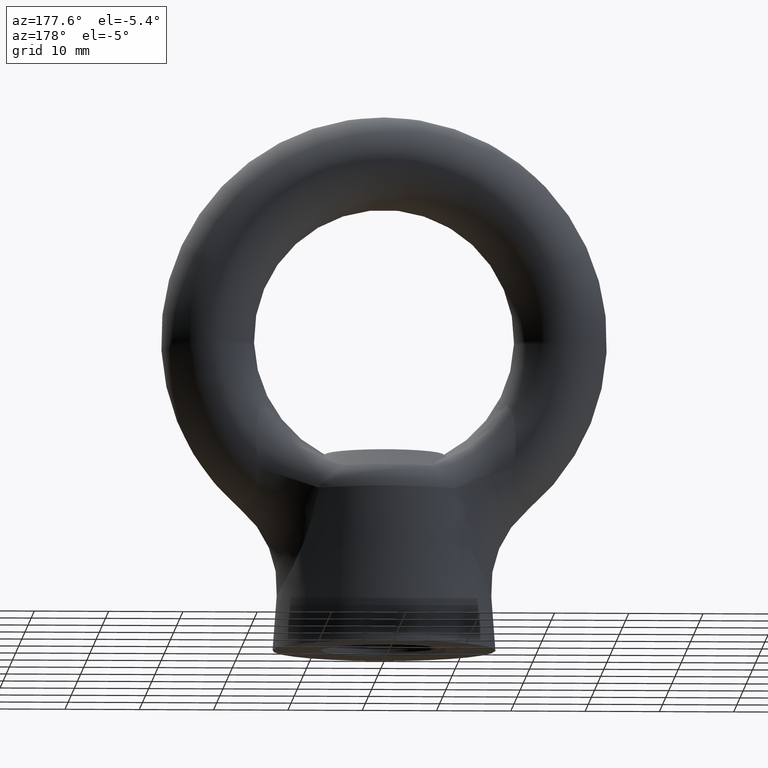
[diagram: clean part render]
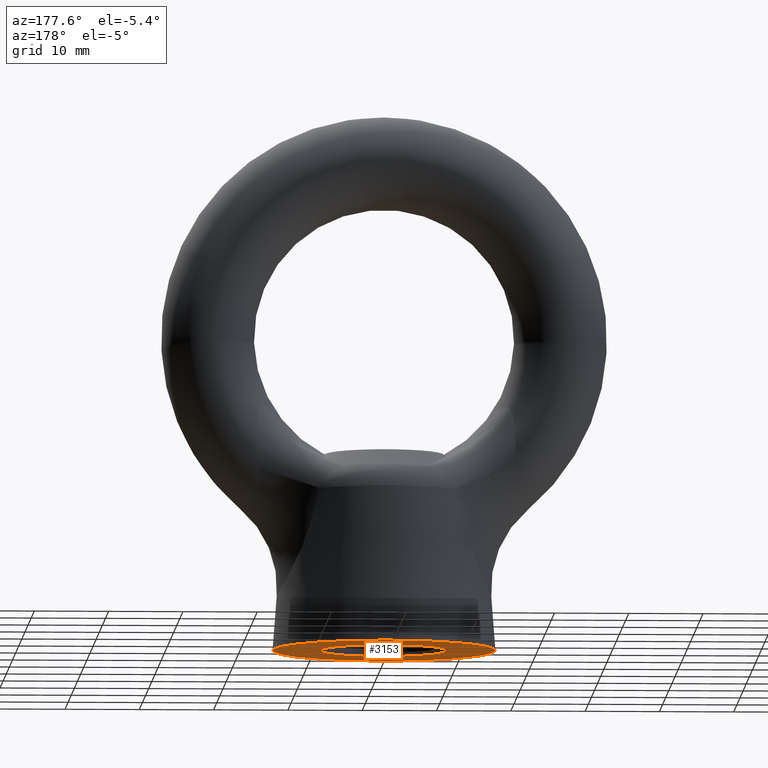
[diagram: same view with one face highlighted and labeled with its STEP entity id]
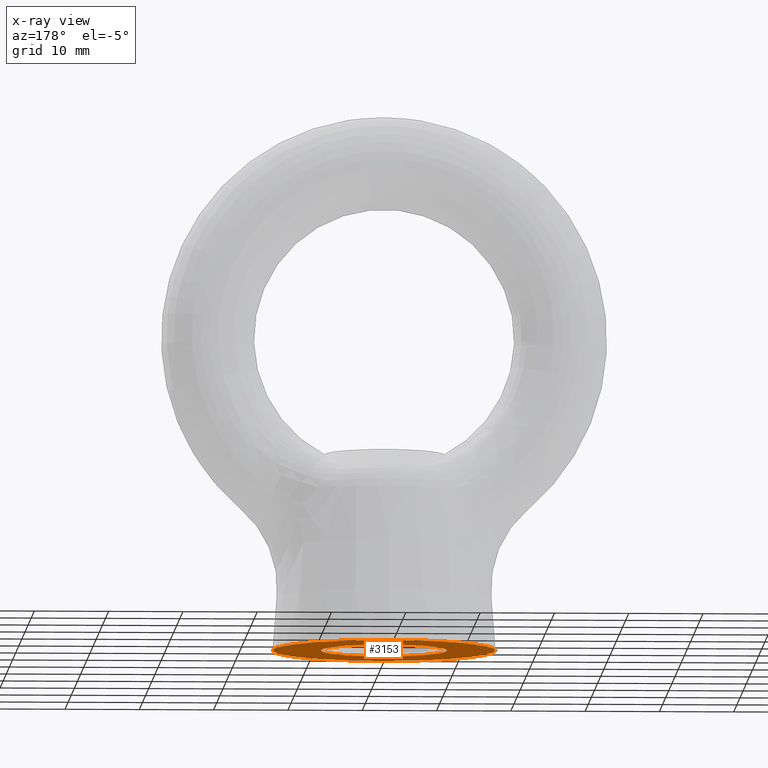
[diagram: x-ray of the same camera — body ghosted, the highlighted face saturated]
A machine part, auxiliary view. The second image highlights one B-rep face of the part: STEP entity #3153.
The next image is the same camera in x-ray: the body ghosted, the highlighted face saturated — about 0% of this face is hidden behind the body in this view.
In plain terms, the highlighted planar face has unit normal (0, 0, -1).
Its self-contained STEP definition (entity closure, byte-faithful):
#2940 = VERTEX_POINT ( 'NONE', #4061 ) ;
#2942 = VERTEX_POINT ( 'NONE', #4060 ) ;
#2955 = EDGE_CURVE ( 'NONE', #2942, #2940, #4107, .T. ) ;
#3074 = VERTEX_POINT ( 'NONE', #7923 ) ;
#3136 = ORIENTED_EDGE ( 'NONE', *, *, #3137, .T. ) ;
#3137 = EDGE_CURVE ( 'NONE', #2940, #2942, #8043, .T. ) ;
#3138 = EDGE_LOOP ( 'NONE', ( #3139, #3140 ) ) ;
#3139 = ORIENTED_EDGE ( 'NONE', *, *, #3235, .T. ) ;
#3140 = ORIENTED_EDGE ( 'NONE', *, *, #3152, .T. ) ;
#3152 = EDGE_CURVE ( 'NONE', #3074, #3214, #8123, .T. ) ;
#3153 = ADVANCED_FACE ( 'NONE', ( #8118, #8117 ), #8116, .T. ) ;
#3154 = EDGE_LOOP ( 'NONE', ( #3155, #3136 ) ) ;
#3155 = ORIENTED_EDGE ( 'NONE', *, *, #2955, .T. ) ;
#3214 = VERTEX_POINT ( 'NONE', #8197 ) ;
#3235 = EDGE_CURVE ( 'NONE', #3214, #3074, #8196, .T. ) ;
#4060 = CARTESIAN_POINT ( 'NONE',  ( -8.499999999999944900, 0.0000000000000000000, -42.00000000000000000 ) ) ;
#4061 = CARTESIAN_POINT ( 'NONE',  ( 8.499999999999944900, 1.040915400749014000E-015, -42.00000000000000000 ) ) ;
#4103 = DIRECTION ( 'NONE',  ( -1.000000000000000000, 0.0000000000000000000, 0.0000000000000000000 ) ) ;
#4104 = DIRECTION ( 'NONE',  ( 0.0000000000000000000, 0.0000000000000000000, 1.000000000000000000 ) ) ;
#4105 = CARTESIAN_POINT ( 'NONE',  ( 0.0000000000000000000, 0.0000000000000000000, -42.00000000000000000 ) ) ;
#4106 = AXIS2_PLACEMENT_3D ( 'NONE', #4105, #4104, #4103 ) ;
#4107 = CIRCLE ( 'NONE', #4106, 8.500000000000000000 ) ;
#7923 = CARTESIAN_POINT ( 'NONE',  ( 15.00000000000000000, 1.836909530733565900E-015, -42.00000000000000000 ) ) ;
#8039 = DIRECTION ( 'NONE',  ( -1.000000000000000000, 0.0000000000000000000, 0.0000000000000000000 ) ) ;
#8040 = DIRECTION ( 'NONE',  ( 0.0000000000000000000, 0.0000000000000000000, 1.000000000000000000 ) ) ;
#8041 = CARTESIAN_POINT ( 'NONE',  ( 0.0000000000000000000, 0.0000000000000000000, -42.00000000000000000 ) ) ;
#8042 = AXIS2_PLACEMENT_3D ( 'NONE', #8041, #8040, #8039 ) ;
#8043 = CIRCLE ( 'NONE', #8042, 8.500000000000000000 ) ;
#8116 = PLANE ( 'NONE',  #8169 ) ;
#8117 = FACE_OUTER_BOUND ( 'NONE', #3138, .T. ) ;
#8118 = FACE_BOUND ( 'NONE', #3154, .T. ) ;
#8119 = DIRECTION ( 'NONE',  ( -1.000000000000000000, 0.0000000000000000000, 0.0000000000000000000 ) ) ;
#8120 = DIRECTION ( 'NONE',  ( 0.0000000000000000000, 0.0000000000000000000, -1.000000000000000000 ) ) ;
#8121 = CARTESIAN_POINT ( 'NONE',  ( 0.0000000000000000000, 0.0000000000000000000, -42.00000000000000000 ) ) ;
#8122 = AXIS2_PLACEMENT_3D ( 'NONE', #8121, #8120, #8119 ) ;
#8123 = CIRCLE ( 'NONE', #8122, 15.00000000000000000 ) ;
#8166 = DIRECTION ( 'NONE',  ( -1.000000000000000000, 0.0000000000000000000, 0.0000000000000000000 ) ) ;
#8167 = DIRECTION ( 'NONE',  ( 0.0000000000000000000, 0.0000000000000000000, -1.000000000000000000 ) ) ;
#8168 = CARTESIAN_POINT ( 'NONE',  ( 0.0000000000000000000, 0.0000000000000000000, -42.00000000000000000 ) ) ;
#8169 = AXIS2_PLACEMENT_3D ( 'NONE', #8168, #8167, #8166 ) ;
#8192 = DIRECTION ( 'NONE',  ( -1.000000000000000000, 0.0000000000000000000, 0.0000000000000000000 ) ) ;
#8193 = DIRECTION ( 'NONE',  ( 0.0000000000000000000, 0.0000000000000000000, -1.000000000000000000 ) ) ;
#8194 = CARTESIAN_POINT ( 'NONE',  ( 0.0000000000000000000, 0.0000000000000000000, -42.00000000000000000 ) ) ;
#8195 = AXIS2_PLACEMENT_3D ( 'NONE', #8194, #8193, #8192 ) ;
#8196 = CIRCLE ( 'NONE', #8195, 15.00000000000000000 ) ;
#8197 = CARTESIAN_POINT ( 'NONE',  ( -15.00000000000000000, 0.0000000000000000000, -42.00000000000000000 ) ) ;